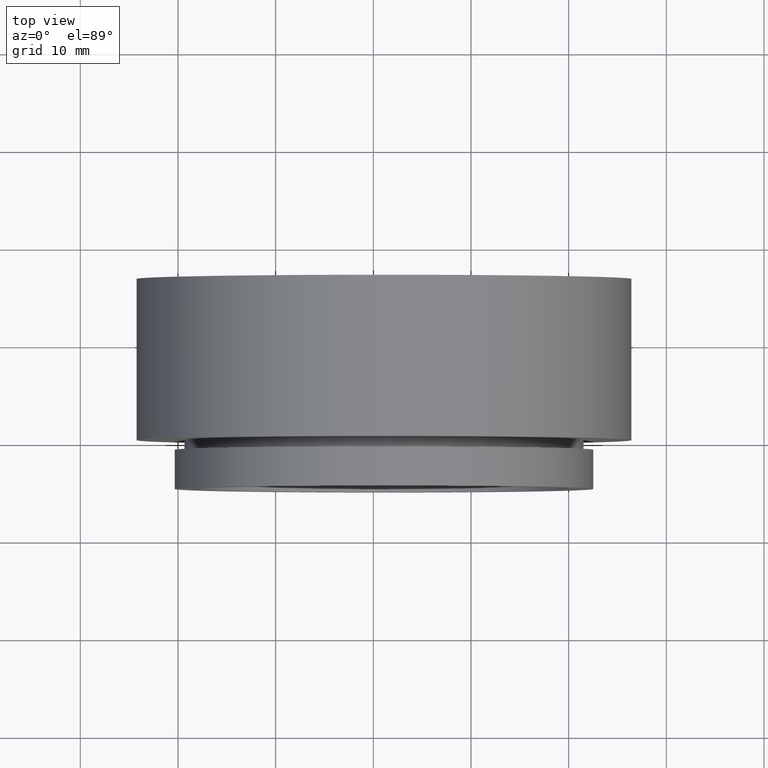
[diagram: clean part render]
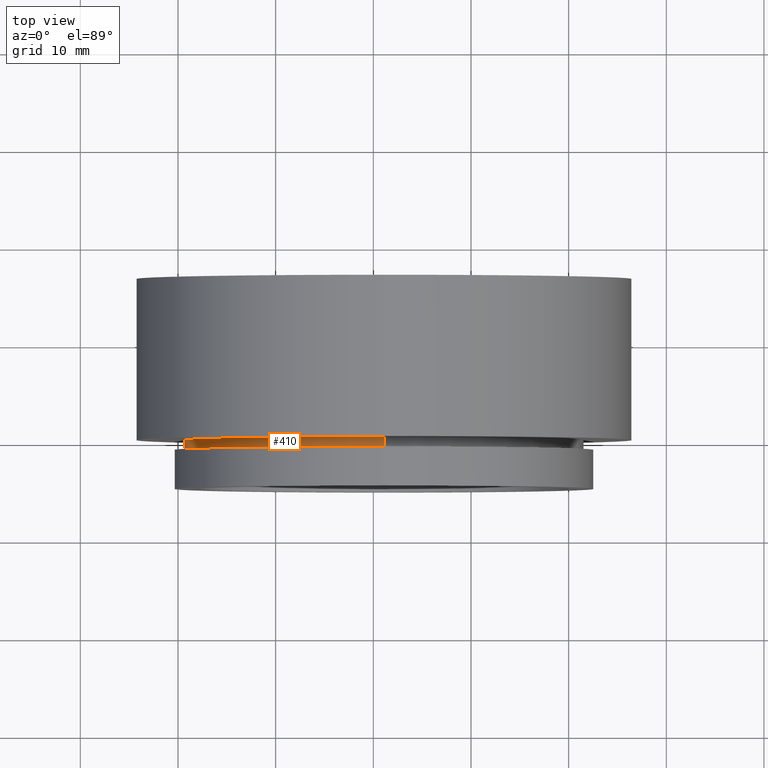
[diagram: same view with one face highlighted and labeled with its STEP entity id]
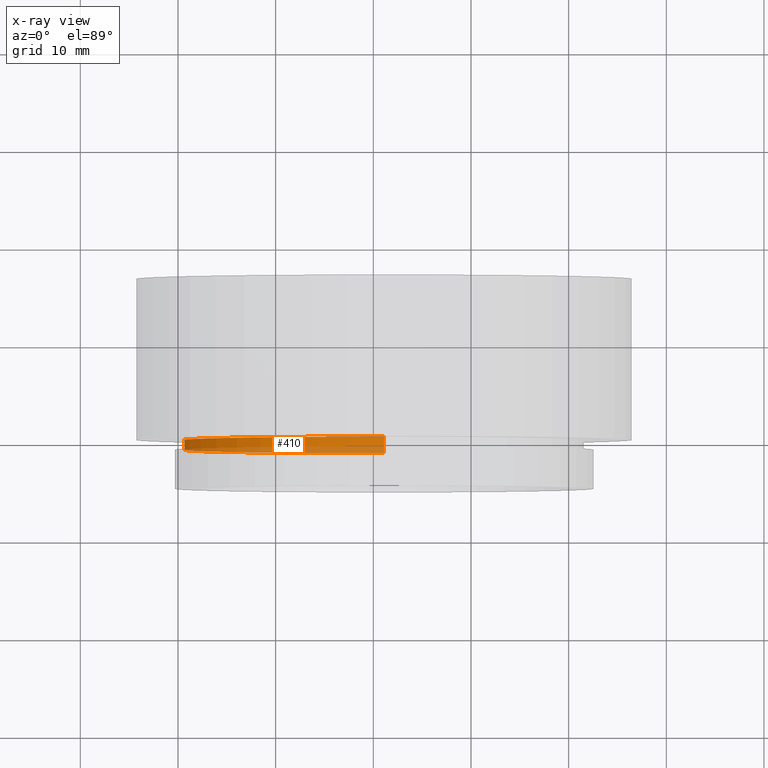
[diagram: x-ray of the same camera — body ghosted, the highlighted face saturated]
A machine part, top view. The second image highlights one B-rep face of the part: STEP entity #410.
The next image is the same camera in x-ray: the body ghosted, the highlighted face saturated — about 36% of this face is hidden behind the body in this view.
In plain terms, the highlighted cylindrical surface (partial cylindrical patch) has radius 20.5 mm, axis along (0, -1, 0).
Its self-contained STEP definition (entity closure, byte-faithful):
#35 = VERTEX_POINT ( 'NONE', #562 ) ;
#91 = CARTESIAN_POINT ( 'NONE',  ( -8.905217641199669742, -19.91880613057825045, 6.150363943474530082 ) ) ;
#104 = VERTEX_POINT ( 'NONE', #91 ) ;
#163 = AXIS2_PLACEMENT_3D ( 'NONE', #172, #564, #770 ) ;
#172 = CARTESIAN_POINT ( 'NONE',  ( -8.905217641199669742, -24.91880613057825045, 26.65036394347453097 ) ) ;
#176 = EDGE_CURVE ( 'NONE', #35, #104, #378, .T. ) ;
#212 = ORIENTED_EDGE ( 'NONE', *, *, #791, .F. ) ;
#269 = EDGE_LOOP ( 'NONE', ( #212, #1269, #526, #655 ) ) ;
#283 = DIRECTION ( 'NONE',  ( 0.000000000000000000, -1.000000000000000000, 0.000000000000000000 ) ) ;
#291 = CARTESIAN_POINT ( 'NONE',  ( -8.905217641199667966, -20.91880613057825045, 47.15036394347453808 ) ) ;
#368 = CARTESIAN_POINT ( 'NONE',  ( -8.905217641199669742, -19.91880613057825045, 26.65036394347453097 ) ) ;
#378 = CIRCLE ( 'NONE', #831, 20.50000000000000000 ) ;
#410 = ADVANCED_FACE ( 'NONE', ( #764 ), #1076, .T. ) ;
#422 = CARTESIAN_POINT ( 'NONE',  ( -8.905217641199667966, -24.91880613057825045, 47.15036394347453808 ) ) ;
#432 = EDGE_CURVE ( 'NONE', #1036, #931, #492, .T. ) ;
#492 = CIRCLE ( 'NONE', #1226, 20.50000000000000000 ) ;
#498 = VECTOR ( 'NONE', #628, 1000.000000000000000 ) ;
#526 = ORIENTED_EDGE ( 'NONE', *, *, #953, .T. ) ;
#562 = CARTESIAN_POINT ( 'NONE',  ( -8.905217641199667966, -19.91880613057825045, 47.15036394347453808 ) ) ;
#564 = DIRECTION ( 'NONE',  ( 0.000000000000000000, -1.000000000000000000, 0.000000000000000000 ) ) ;
#628 = DIRECTION ( 'NONE',  ( 0.000000000000000000, -1.000000000000000000, 0.000000000000000000 ) ) ;
#655 = ORIENTED_EDGE ( 'NONE', *, *, #432, .F. ) ;
#679 = CARTESIAN_POINT ( 'NONE',  ( -8.905217641199669742, -20.91880613057825045, 26.65036394347453097 ) ) ;
#720 = LINE ( 'NONE', #422, #498 ) ;
#754 = CARTESIAN_POINT ( 'NONE',  ( -8.905217641199669742, -20.91880613057825045, 6.150363943474530082 ) ) ;
#764 = FACE_OUTER_BOUND ( 'NONE', #269, .T. ) ;
#770 = DIRECTION ( 'NONE',  ( 0.000000000000000000, 0.000000000000000000, -1.000000000000000000 ) ) ;
#791 = EDGE_CURVE ( 'NONE', #35, #1036, #720, .T. ) ;
#831 = AXIS2_PLACEMENT_3D ( 'NONE', #368, #911, #1023 ) ;
#911 = DIRECTION ( 'NONE',  ( 0.000000000000000000, -1.000000000000000000, 0.000000000000000000 ) ) ;
#931 = VERTEX_POINT ( 'NONE', #754 ) ;
#953 = EDGE_CURVE ( 'NONE', #104, #931, #1069, .T. ) ;
#1023 = DIRECTION ( 'NONE',  ( 0.000000000000000000, 0.000000000000000000, -1.000000000000000000 ) ) ;
#1036 = VERTEX_POINT ( 'NONE', #291 ) ;
#1069 = LINE ( 'NONE', #1281, #1139 ) ;
#1076 = CYLINDRICAL_SURFACE ( 'NONE', #163, 20.50000000000000000 ) ;
#1105 = DIRECTION ( 'NONE',  ( 0.000000000000000000, 0.000000000000000000, -1.000000000000000000 ) ) ;
#1139 = VECTOR ( 'NONE', #1287, 1000.000000000000000 ) ;
#1226 = AXIS2_PLACEMENT_3D ( 'NONE', #679, #283, #1105 ) ;
#1269 = ORIENTED_EDGE ( 'NONE', *, *, #176, .T. ) ;
#1281 = CARTESIAN_POINT ( 'NONE',  ( -8.905217641199669742, -24.91880613057825045, 6.150363943474530082 ) ) ;
#1287 = DIRECTION ( 'NONE',  ( 0.000000000000000000, -1.000000000000000000, 0.000000000000000000 ) ) ;